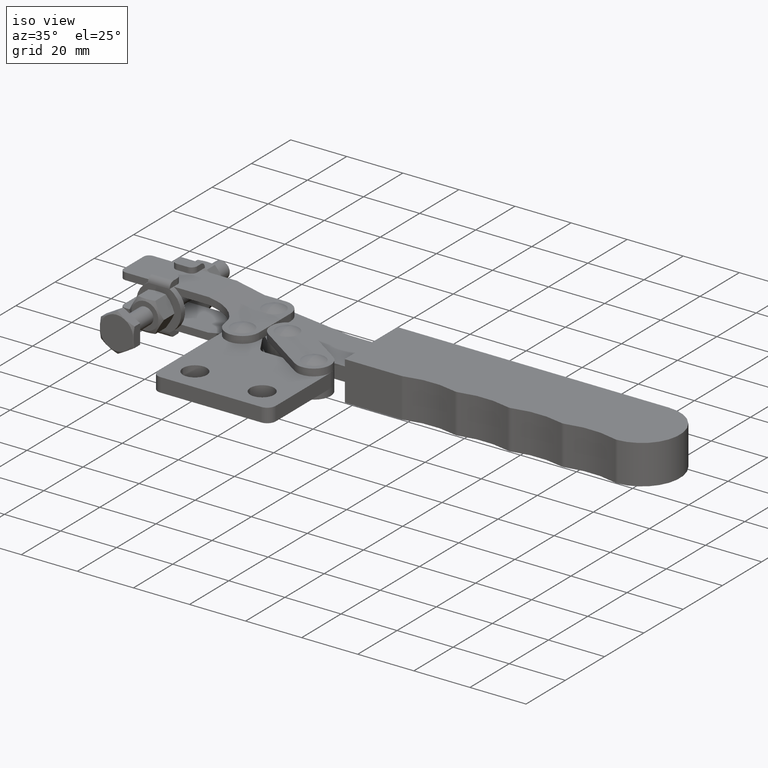
[diagram: clean part render]
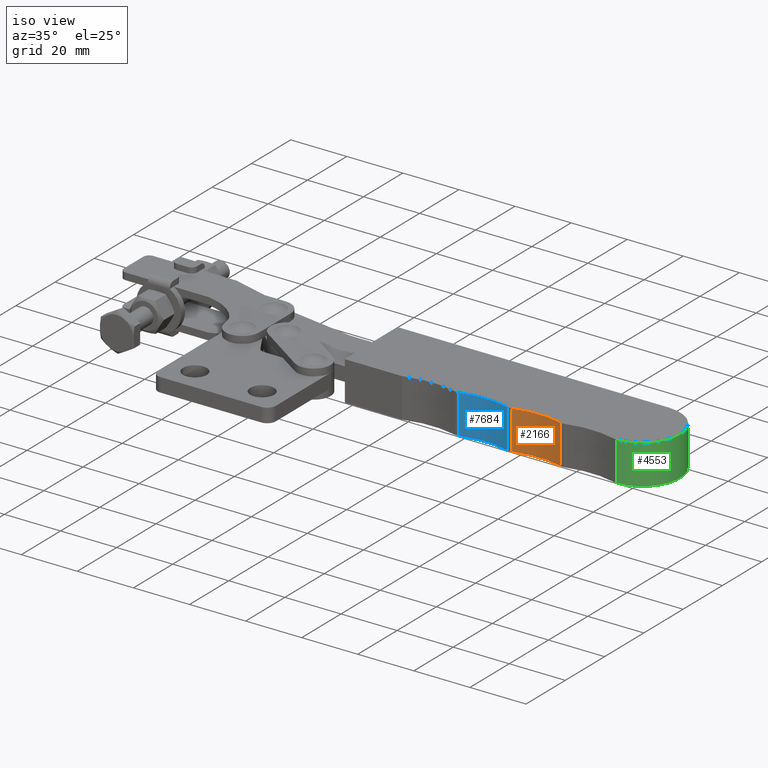
[diagram: same view with three faces highlighted in distinct colors, each labeled with its STEP entity id]
A machine part, iso view with three faces highlighted in distinct colors.
Their STEP definitions:

[orange] entity #2166 — the highlighted cylindrical surface (partial cylindrical patch) has radius 32 mm, axis along (0, 0, -1).
#103 = AXIS2_PLACEMENT_3D ( 'NONE', #3082, #7796, #7760 ) ;
#466 = CARTESIAN_POINT ( 'NONE',  ( 63.00042372646179000, 11.33479812045718500, 6.999999999999999100 ) ) ;
#467 = ORIENTED_EDGE ( 'NONE', *, *, #1339, .T. ) ;
#964 = CARTESIAN_POINT ( 'NONE',  ( 71.76913214523121100, -19.44035017596214100, 6.999999999999999100 ) ) ;
#1339 = EDGE_CURVE ( 'NONE', #4863, #5465, #2773, .T. ) ;
#1964 = VERTEX_POINT ( 'NONE', #2402 ) ;
#2166 = ADVANCED_FACE ( 'NONE', ( #5395 ), #4197, .F. ) ;
#2173 = CARTESIAN_POINT ( 'NONE',  ( 80.37191809346006700, 11.38159126076358200, 6.999999999999999100 ) ) ;
#2402 = CARTESIAN_POINT ( 'NONE',  ( 80.37191809346006700, 11.38159126076358200, -7.000000000000000900 ) ) ;
#2424 = VERTEX_POINT ( 'NONE', #2173 ) ;
#2712 = CARTESIAN_POINT ( 'NONE',  ( 63.00042372646179000, 11.33479812045718500, 6.999999999999999100 ) ) ;
#2773 = LINE ( 'NONE', #2712, #6332 ) ;
#3020 = VECTOR ( 'NONE', #7585, 1000.000000000000000 ) ;
#3082 = CARTESIAN_POINT ( 'NONE',  ( 71.76913214523121100, -19.44035017596214100, -7.000000000000000900 ) ) ;
#3791 = AXIS2_PLACEMENT_3D ( 'NONE', #5237, #5682, #4359 ) ;
#3900 = LINE ( 'NONE', #7671, #3020 ) ;
#4197 = CYLINDRICAL_SURFACE ( 'NONE', #8192, 31.99999999999991800 ) ;
#4220 = ORIENTED_EDGE ( 'NONE', *, *, #6925, .T. ) ;
#4334 = ORIENTED_EDGE ( 'NONE', *, *, #7341, .F. ) ;
#4359 = DIRECTION ( 'NONE',  ( 0.9999993301781756600, -0.001157429565958547600, 0.0000000000000000000 ) ) ;
#4369 = EDGE_LOOP ( 'NONE', ( #4220, #4334, #4416, #467 ) ) ;
#4416 = ORIENTED_EDGE ( 'NONE', *, *, #6737, .F. ) ;
#4863 = VERTEX_POINT ( 'NONE', #466 ) ;
#5237 = CARTESIAN_POINT ( 'NONE',  ( 71.76913214523121100, -19.44035017596214100, 6.999999999999999100 ) ) ;
#5395 = FACE_OUTER_BOUND ( 'NONE', #4369, .T. ) ;
#5465 = VERTEX_POINT ( 'NONE', #8311 ) ;
#5682 = DIRECTION ( 'NONE',  ( -0.0000000000000000000, 0.0000000000000000000, -1.000000000000000000 ) ) ;
#6332 = VECTOR ( 'NONE', #7694, 1000.000000000000000 ) ;
#6737 = EDGE_CURVE ( 'NONE', #4863, #2424, #6906, .T. ) ;
#6815 = DIRECTION ( 'NONE',  ( -0.0000000000000000000, 0.0000000000000000000, -1.000000000000000000 ) ) ;
#6906 = CIRCLE ( 'NONE', #3791, 31.99999999999991800 ) ;
#6925 = EDGE_CURVE ( 'NONE', #5465, #1964, #8086, .T. ) ;
#7341 = EDGE_CURVE ( 'NONE', #2424, #1964, #3900, .T. ) ;
#7585 = DIRECTION ( 'NONE',  ( -0.0000000000000000000, 0.0000000000000000000, -1.000000000000000000 ) ) ;
#7606 = DIRECTION ( 'NONE',  ( -0.9999993301781756600, 0.001157429565958547600, 0.0000000000000000000 ) ) ;
#7671 = CARTESIAN_POINT ( 'NONE',  ( 80.37191809346006700, 11.38159126076358200, 6.999999999999999100 ) ) ;
#7694 = DIRECTION ( 'NONE',  ( -0.0000000000000000000, 0.0000000000000000000, -1.000000000000000000 ) ) ;
#7760 = DIRECTION ( 'NONE',  ( 0.9999993301781756600, -0.001157429565958547600, 0.0000000000000000000 ) ) ;
#7796 = DIRECTION ( 'NONE',  ( -0.0000000000000000000, 0.0000000000000000000, -1.000000000000000000 ) ) ;
#8086 = CIRCLE ( 'NONE', #103, 31.99999999999991800 ) ;
#8192 = AXIS2_PLACEMENT_3D ( 'NONE', #964, #6815, #7606 ) ;
#8311 = CARTESIAN_POINT ( 'NONE',  ( 63.00042372646179000, 11.33479812045718500, -7.000000000000000900 ) ) ;

[blue] entity #7684 — the highlighted cylindrical surface (partial cylindrical patch) has radius 32 mm, axis along (0, 0, -1).
#12 = ORIENTED_EDGE ( 'NONE', *, *, #2255, .T. ) ;
#263 = VERTEX_POINT ( 'NONE', #8348 ) ;
#723 = AXIS2_PLACEMENT_3D ( 'NONE', #7540, #4859, #1150 ) ;
#995 = CARTESIAN_POINT ( 'NONE',  ( 61.34961434249166200, 11.33670881732599700, 6.999999999999999100 ) ) ;
#1014 = CARTESIAN_POINT ( 'NONE',  ( 43.97827483815525100, 11.42371436769448700, 6.999999999999999100 ) ) ;
#1150 = DIRECTION ( 'NONE',  ( -0.9999993301781756600, 0.001157429565958544300, 0.0000000000000000000 ) ) ;
#1604 = ORIENTED_EDGE ( 'NONE', *, *, #4435, .F. ) ;
#2210 = CARTESIAN_POINT ( 'NONE',  ( 61.34961434249166200, 11.33670881732599700, 6.999999999999999100 ) ) ;
#2255 = EDGE_CURVE ( 'NONE', #6749, #3758, #4518, .T. ) ;
#2910 = ORIENTED_EDGE ( 'NONE', *, *, #4791, .F. ) ;
#3011 = CIRCLE ( 'NONE', #5358, 32.00000000000000000 ) ;
#3113 = ORIENTED_EDGE ( 'NONE', *, *, #7321, .T. ) ;
#3504 = DIRECTION ( 'NONE',  ( -0.0000000000000000000, 0.0000000000000000000, -1.000000000000000000 ) ) ;
#3758 = VERTEX_POINT ( 'NONE', #7205 ) ;
#4323 = VECTOR ( 'NONE', #7528, 1000.000000000000000 ) ;
#4435 = EDGE_CURVE ( 'NONE', #8379, #263, #8133, .T. ) ;
#4518 = LINE ( 'NONE', #7497, #4323 ) ;
#4562 = DIRECTION ( 'NONE',  ( 0.9999993301781756600, -0.001157429565958544500, 0.0000000000000000000 ) ) ;
#4598 = AXIS2_PLACEMENT_3D ( 'NONE', #6851, #8395, #7784 ) ;
#4791 = EDGE_CURVE ( 'NONE', #6749, #8379, #6682, .T. ) ;
#4859 = DIRECTION ( 'NONE',  ( -0.0000000000000000000, 0.0000000000000000000, -1.000000000000000000 ) ) ;
#5358 = AXIS2_PLACEMENT_3D ( 'NONE', #7354, #3504, #4562 ) ;
#5716 = DIRECTION ( 'NONE',  ( -0.0000000000000000000, 0.0000000000000000000, -1.000000000000000000 ) ) ;
#6131 = CYLINDRICAL_SURFACE ( 'NONE', #723, 32.00000000000000700 ) ;
#6265 = FACE_OUTER_BOUND ( 'NONE', #8480, .T. ) ;
#6682 = CIRCLE ( 'NONE', #4598, 32.00000000000000000 ) ;
#6749 = VERTEX_POINT ( 'NONE', #1014 ) ;
#6851 = CARTESIAN_POINT ( 'NONE',  ( 52.50968933225226500, -19.41805871249520300, 6.999999999999999100 ) ) ;
#7205 = CARTESIAN_POINT ( 'NONE',  ( 43.97827483815525100, 11.42371436769448700, -7.000000000000000900 ) ) ;
#7321 = EDGE_CURVE ( 'NONE', #3758, #263, #3011, .T. ) ;
#7354 = CARTESIAN_POINT ( 'NONE',  ( 52.50968933225226500, -19.41805871249520300, -7.000000000000000900 ) ) ;
#7497 = CARTESIAN_POINT ( 'NONE',  ( 43.97827483815525100, 11.42371436769448700, 6.999999999999999100 ) ) ;
#7528 = DIRECTION ( 'NONE',  ( -0.0000000000000000000, 0.0000000000000000000, -1.000000000000000000 ) ) ;
#7540 = CARTESIAN_POINT ( 'NONE',  ( 52.50968933225226500, -19.41805871249520300, 6.999999999999999100 ) ) ;
#7684 = ADVANCED_FACE ( 'NONE', ( #6265 ), #6131, .F. ) ;
#7784 = DIRECTION ( 'NONE',  ( 0.9999993301781756600, -0.001157429565958544500, 0.0000000000000000000 ) ) ;
#8133 = LINE ( 'NONE', #995, #8337 ) ;
#8337 = VECTOR ( 'NONE', #5716, 1000.000000000000000 ) ;
#8348 = CARTESIAN_POINT ( 'NONE',  ( 61.34961434249166200, 11.33670881732599700, -7.000000000000000900 ) ) ;
#8379 = VERTEX_POINT ( 'NONE', #2210 ) ;
#8395 = DIRECTION ( 'NONE',  ( -0.0000000000000000000, 0.0000000000000000000, -1.000000000000000000 ) ) ;
#8480 = EDGE_LOOP ( 'NONE', ( #3113, #1604, #2910, #12 ) ) ;

[green] entity #4553 — the highlighted cylindrical surface (partial cylindrical patch) has radius 13.5 mm, axis along (0, 0, -1).
#195 = CARTESIAN_POINT ( 'NONE',  ( 100.2059568025393000, 38.04346426149196200, 6.999999999999999100 ) ) ;
#216 = EDGE_LOOP ( 'NONE', ( #3270, #3221, #3078, #3002 ) ) ;
#522 = CARTESIAN_POINT ( 'NONE',  ( 100.7187293448377700, 11.05381816686496200, 6.999999999999999100 ) ) ;
#657 = EDGE_CURVE ( 'NONE', #3831, #4307, #1035, .T. ) ;
#730 = VECTOR ( 'NONE', #3215, 1000.000000000000000 ) ;
#766 = DIRECTION ( 'NONE',  ( -0.0000000000000000000, 0.0000000000000000000, -1.000000000000000000 ) ) ;
#1035 = LINE ( 'NONE', #522, #7698 ) ;
#1504 = AXIS2_PLACEMENT_3D ( 'NONE', #6326, #1773, #3520 ) ;
#1540 = CARTESIAN_POINT ( 'NONE',  ( 100.2059568025393000, 38.04346426149196200, 6.999999999999999100 ) ) ;
#1644 = CARTESIAN_POINT ( 'NONE',  ( 100.1903315033988700, 24.54347330408646100, 6.999999999999999100 ) ) ;
#1669 = DIRECTION ( 'NONE',  ( 0.9999993301781755500, -0.001157429565958496800, 0.0000000000000000000 ) ) ;
#1773 = DIRECTION ( 'NONE',  ( 0.0000000000000000000, 0.0000000000000000000, 1.000000000000000000 ) ) ;
#2536 = AXIS2_PLACEMENT_3D ( 'NONE', #1644, #3514, #4834 ) ;
#3002 = ORIENTED_EDGE ( 'NONE', *, *, #657, .T. ) ;
#3078 = ORIENTED_EDGE ( 'NONE', *, *, #8665, .F. ) ;
#3215 = DIRECTION ( 'NONE',  ( -0.0000000000000000000, 0.0000000000000000000, -1.000000000000000000 ) ) ;
#3221 = ORIENTED_EDGE ( 'NONE', *, *, #4549, .F. ) ;
#3270 = ORIENTED_EDGE ( 'NONE', *, *, #6570, .T. ) ;
#3300 = CARTESIAN_POINT ( 'NONE',  ( 100.2059568025393000, 38.04346426149196200, -7.000000000000000900 ) ) ;
#3514 = DIRECTION ( 'NONE',  ( -0.0000000000000000000, 0.0000000000000000000, -1.000000000000000000 ) ) ;
#3520 = DIRECTION ( 'NONE',  ( 0.9999993301781755500, -0.001157429565958496800, 0.0000000000000000000 ) ) ;
#3750 = DIRECTION ( 'NONE',  ( 0.0000000000000000000, 0.0000000000000000000, 1.000000000000000000 ) ) ;
#3763 = FACE_OUTER_BOUND ( 'NONE', #216, .T. ) ;
#3831 = VERTEX_POINT ( 'NONE', #5330 ) ;
#3987 = LINE ( 'NONE', #195, #730 ) ;
#4051 = CIRCLE ( 'NONE', #8512, 13.50000000000013500 ) ;
#4139 = CARTESIAN_POINT ( 'NONE',  ( 100.1903315033988700, 24.54347330408646100, -7.000000000000000900 ) ) ;
#4307 = VERTEX_POINT ( 'NONE', #5343 ) ;
#4439 = CYLINDRICAL_SURFACE ( 'NONE', #2536, 13.50000000000013500 ) ;
#4549 = EDGE_CURVE ( 'NONE', #6080, #8602, #3987, .T. ) ;
#4553 = ADVANCED_FACE ( 'NONE', ( #3763 ), #4439, .T. ) ;
#4834 = DIRECTION ( 'NONE',  ( -0.9999993301781755500, 0.001157429565958496800, 0.0000000000000000000 ) ) ;
#5330 = CARTESIAN_POINT ( 'NONE',  ( 100.7187293448377700, 11.05381816686496200, 6.999999999999999100 ) ) ;
#5343 = CARTESIAN_POINT ( 'NONE',  ( 100.7187293448377700, 11.05381816686496200, -7.000000000000000900 ) ) ;
#6080 = VERTEX_POINT ( 'NONE', #1540 ) ;
#6326 = CARTESIAN_POINT ( 'NONE',  ( 100.1903315033988700, 24.54347330408646100, 6.999999999999999100 ) ) ;
#6570 = EDGE_CURVE ( 'NONE', #4307, #8602, #4051, .T. ) ;
#7553 = CIRCLE ( 'NONE', #1504, 13.50000000000013500 ) ;
#7698 = VECTOR ( 'NONE', #766, 1000.000000000000000 ) ;
#8512 = AXIS2_PLACEMENT_3D ( 'NONE', #4139, #3750, #1669 ) ;
#8602 = VERTEX_POINT ( 'NONE', #3300 ) ;
#8665 = EDGE_CURVE ( 'NONE', #3831, #6080, #7553, .T. ) ;